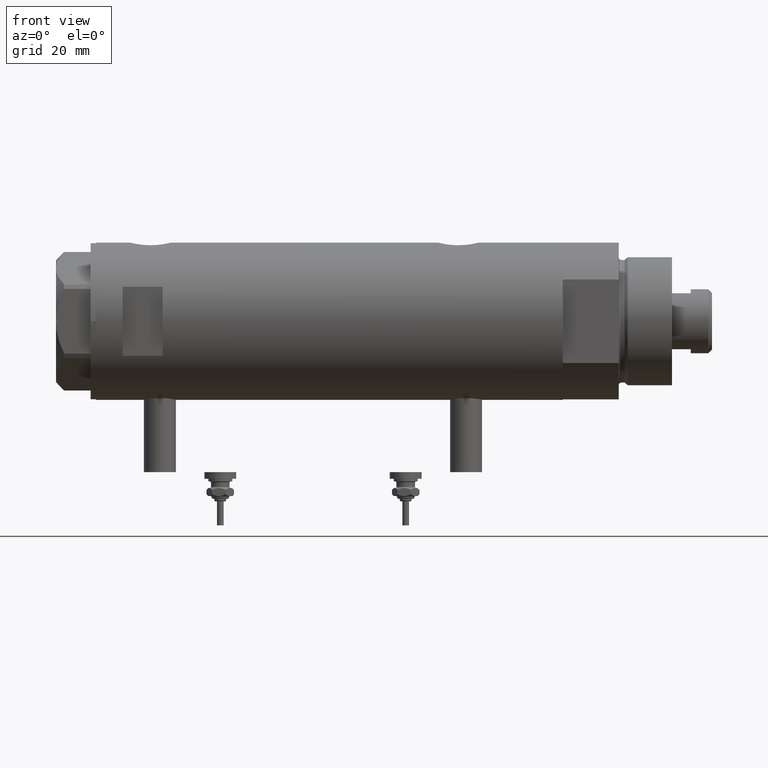
[diagram: clean part render]
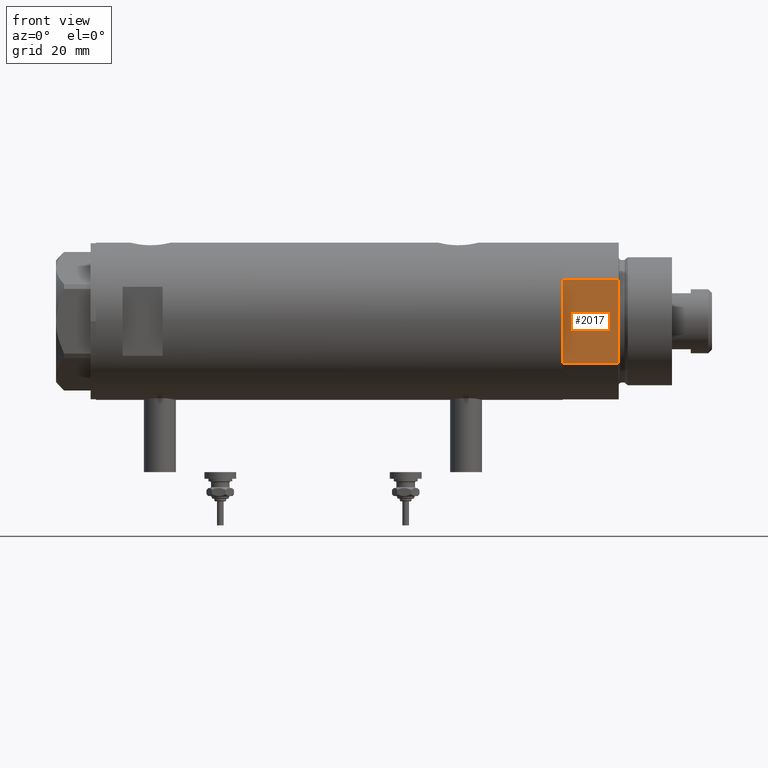
[diagram: same view with one face highlighted and labeled with its STEP entity id]
A machine part, front view. The second image highlights one B-rep face of the part: STEP entity #2017.
In plain terms, the highlighted planar face has unit normal (-0, 1, 0).
Its self-contained STEP definition (entity closure, byte-faithful):
#282 = CARTESIAN_POINT ( 'NONE',  ( -15.66045976336583401, -25.00000000000000000, 0.000000000000000000 ) ) ;
#303 = CARTESIAN_POINT ( 'NONE',  ( -15.66045976336583401, -25.00000000000000000, 0.000000000000000000 ) ) ;
#501 = EDGE_CURVE ( 'NONE', #929, #2918, #1515, .T. ) ;
#540 = EDGE_CURVE ( 'NONE', #3723, #4040, #3050, .T. ) ;
#627 = EDGE_CURVE ( 'NONE', #929, #5075, #1716, .T. ) ;
#905 = CARTESIAN_POINT ( 'NONE',  ( -15.66045976336582690, -25.00000000000000000, 0.000000000000000000 ) ) ;
#929 = VERTEX_POINT ( 'NONE', #1210 ) ;
#1013 = EDGE_CURVE ( 'NONE', #5075, #5345, #4413, .T. ) ;
#1159 = ORIENTED_EDGE ( 'NONE', *, *, #501, .F. ) ;
#1210 = CARTESIAN_POINT ( 'NONE',  ( 15.66045976336583401, -25.00000000000000000, 0.000000000000000000 ) ) ;
#1272 = DIRECTION ( 'NONE',  ( -0.000000000000000000, 1.000000000000000000, 0.000000000000000000 ) ) ;
#1375 = CARTESIAN_POINT ( 'NONE',  ( -15.66045976336583401, -25.00000000000000000, 0.000000000000000000 ) ) ;
#1515 = LINE ( 'NONE', #3855, #1864 ) ;
#1600 = DIRECTION ( 'NONE',  ( -1.000000000000000000, -0.000000000000000000, -0.000000000000000000 ) ) ;
#1702 = VECTOR ( 'NONE', #5900, 1000.000000000000000 ) ;
#1716 = LINE ( 'NONE', #3548, #3292 ) ;
#1796 = DIRECTION ( 'NONE',  ( 0.000000000000000000, -0.000000000000000000, 1.000000000000000000 ) ) ;
#1864 = VECTOR ( 'NONE', #1600, 1000.000000000000000 ) ;
#2017 = ADVANCED_FACE ( 'NONE', ( #2215 ), #3540, .F. ) ;
#2082 = ORIENTED_EDGE ( 'NONE', *, *, #5379, .F. ) ;
#2180 = VECTOR ( 'NONE', #4946, 1000.000000000000000 ) ;
#2215 = FACE_OUTER_BOUND ( 'NONE', #4197, .T. ) ;
#2460 = CARTESIAN_POINT ( 'NONE',  ( 15.66045976336583045, -25.00000000000000000, 21.00000000000000355 ) ) ;
#2646 = AXIS2_PLACEMENT_3D ( 'NONE', #303, #1272, #1796 ) ;
#2680 = CARTESIAN_POINT ( 'NONE',  ( 7.141428428542853091, -25.00000000000000000, 0.000000000000000000 ) ) ;
#2918 = VERTEX_POINT ( 'NONE', #2680 ) ;
#3039 = DIRECTION ( 'NONE',  ( -1.000000000000000000, -0.000000000000000000, -0.000000000000000000 ) ) ;
#3050 = LINE ( 'NONE', #282, #3985 ) ;
#3143 = LINE ( 'NONE', #3557, #2180 ) ;
#3292 = VECTOR ( 'NONE', #5369, 1000.000000000000000 ) ;
#3540 = PLANE ( 'NONE',  #2646 ) ;
#3548 = CARTESIAN_POINT ( 'NONE',  ( 15.66045976336583401, -25.00000000000000000, 0.000000000000000000 ) ) ;
#3551 = CARTESIAN_POINT ( 'NONE',  ( -15.66045976336583045, -24.99999999999999645, 20.99999999999999645 ) ) ;
#3557 = CARTESIAN_POINT ( 'NONE',  ( -15.66045976336583401, -25.00000000000000000, 0.000000000000000000 ) ) ;
#3723 = VERTEX_POINT ( 'NONE', #4572 ) ;
#3724 = ORIENTED_EDGE ( 'NONE', *, *, #5688, .F. ) ;
#3855 = CARTESIAN_POINT ( 'NONE',  ( -15.66045976336583401, -25.00000000000000000, 0.000000000000000000 ) ) ;
#3858 = ORIENTED_EDGE ( 'NONE', *, *, #1013, .T. ) ;
#3909 = CARTESIAN_POINT ( 'NONE',  ( -15.66045976336583401, -25.00000000000000000, 21.00000000000000000 ) ) ;
#3985 = VECTOR ( 'NONE', #4062, 1000.000000000000000 ) ;
#4040 = VERTEX_POINT ( 'NONE', #905 ) ;
#4045 = ORIENTED_EDGE ( 'NONE', *, *, #627, .T. ) ;
#4062 = DIRECTION ( 'NONE',  ( -1.000000000000000000, -0.000000000000000000, -0.000000000000000000 ) ) ;
#4184 = LINE ( 'NONE', #1375, #1702 ) ;
#4197 = EDGE_LOOP ( 'NONE', ( #3858, #2082, #5163, #3724, #1159, #4045 ) ) ;
#4413 = LINE ( 'NONE', #3909, #4736 ) ;
#4572 = CARTESIAN_POINT ( 'NONE',  ( -7.141428428542853091, -25.00000000000000000, 0.000000000000000000 ) ) ;
#4736 = VECTOR ( 'NONE', #3039, 1000.000000000000000 ) ;
#4946 = DIRECTION ( 'NONE',  ( -1.000000000000000000, -0.000000000000000000, -0.000000000000000000 ) ) ;
#5075 = VERTEX_POINT ( 'NONE', #2460 ) ;
#5163 = ORIENTED_EDGE ( 'NONE', *, *, #540, .F. ) ;
#5345 = VERTEX_POINT ( 'NONE', #3551 ) ;
#5369 = DIRECTION ( 'NONE',  ( -0.000000000000000000, -0.000000000000000000, 1.000000000000000000 ) ) ;
#5379 = EDGE_CURVE ( 'NONE', #4040, #5345, #4184, .T. ) ;
#5688 = EDGE_CURVE ( 'NONE', #2918, #3723, #3143, .T. ) ;
#5900 = DIRECTION ( 'NONE',  ( -0.000000000000000000, -0.000000000000000000, 1.000000000000000000 ) ) ;